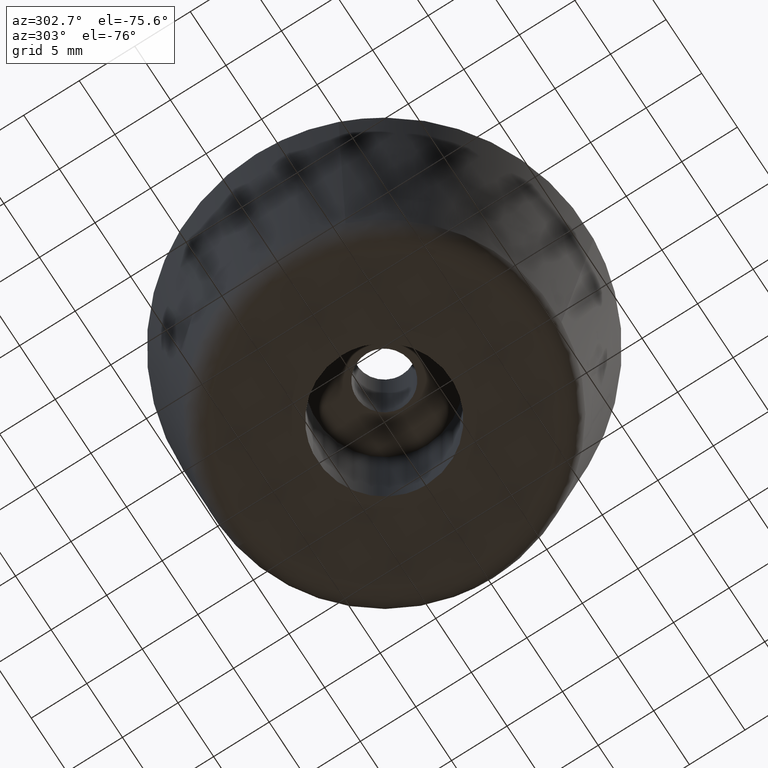
[diagram: clean part render]
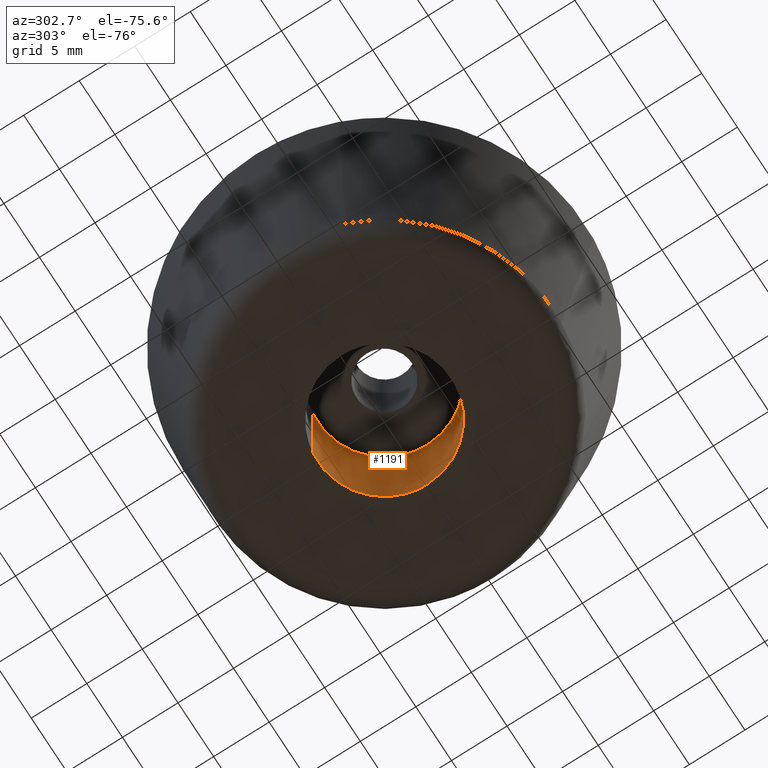
[diagram: same view with one face highlighted and labeled with its STEP entity id]
A machine part, auxiliary view. The second image highlights one B-rep face of the part: STEP entity #1191.
In plain terms, the highlighted face is a freeform B-spline surface patch.
Its self-contained STEP definition (entity closure, byte-faithful):
#1089=CARTESIAN_POINT('',(-0.708205407940551,5.958057158181998,12.299999999999796));
#1090=CARTESIAN_POINT('',(-0.537688371827866,5.978325692691634,12.299999999999796));
#1091=CARTESIAN_POINT('',(-0.366291237209142,5.988808790531200,12.299999999999800));
#1092=CARTESIAN_POINT('',(5.622517553322059,6.355100027740342,12.299999999999796));
#1093=CARTESIAN_POINT('',(5.988808790531200,0.366291237209142,12.299999999999800));
#1094=CARTESIAN_POINT('',(6.355100027740342,-5.622517553322059,12.299999999999796));
#1095=CARTESIAN_POINT('',(0.366291237209142,-5.988808790531200,12.299999999999800));
#1096=CARTESIAN_POINT('',(-0.708205407940551,5.958057158181998,-0.307499999999996));
#1097=CARTESIAN_POINT('',(-0.537688371827866,5.978325692691634,-0.307499999999996));
#1098=CARTESIAN_POINT('',(-0.366291237209142,5.988808790531200,-0.307499999999996));
#1099=CARTESIAN_POINT('',(5.622517553322059,6.355100027740342,-0.307499999999996));
#1100=CARTESIAN_POINT('',(5.988808790531200,0.366291237209142,-0.307499999999996));
#1101=CARTESIAN_POINT('',(6.355100027740342,-5.622517553322059,-0.307499999999996));
#1102=CARTESIAN_POINT('',(0.366291237209142,-5.988808790531200,-0.307499999999996));
#1110=(BOUNDED_SURFACE()B_SPLINE_SURFACE(2,1,((#1089,#1096),(#1090,#1097),(#1091,#1098),(#1092,#1099),(#1093,#1100),(#1094,#1101),(#1095,#1102)),.UNSPECIFIED.,.F.,.F.,.U.)B_SPLINE_SURFACE_WITH_KNOTS((3,2,2,3),(2,2),(0.0,0.397645019878172,10.338770516832451,20.279896013786729),(0.0,12.607499999999790),.UNSPECIFIED.)GEOMETRIC_REPRESENTATION_ITEM()RATIONAL_B_SPLINE_SURFACE(((0.977505800795127,0.977505800795127),(0.988284271247462,0.988284271247462),(1.0,1.0),(0.707106781186548,0.707106781186548),(1.0,1.0),(0.707106781186548,0.707106781186548),(1.0,1.0)))REPRESENTATION_ITEM('')SURFACE());
#1111=CARTESIAN_POINT('',(-0.708205407962288,5.958057158179415,4.827028E-016));
#1112=VERTEX_POINT('',#1111);
#1113=CARTESIAN_POINT('',(6.0,0.0,0.0));
#1114=VERTEX_POINT('',#1113);
#1115=CARTESIAN_POINT('',(-0.708205407962288,5.958057158179415,4.827028E-016));
#1116=CARTESIAN_POINT('',(-0.355344717933428,5.999999999999999,0.0));
#1117=CARTESIAN_POINT('',(0.0,6.0,0.0));
#1118=CARTESIAN_POINT('',(6.0,6.0,0.0));
#1119=CARTESIAN_POINT('',(6.0,0.0,0.0));
#1127=(BOUNDED_CURVE()B_SPLINE_CURVE(2,(#1115,#1116,#1117,#1118,#1119),.UNSPECIFIED.,.F.,.U.)B_SPLINE_CURVE_WITH_KNOTS((3,2,3),(0.229562473514411,0.250000000000000,0.500000000000000),.UNSPECIFIED.)CURVE()GEOMETRIC_REPRESENTATION_ITEM()RATIONAL_B_SPLINE_CURVE((0.956026754185469,0.976055948332203,1.0,0.707106781186548,1.0))REPRESENTATION_ITEM(''));
#1128=EDGE_CURVE('',#1112,#1114,#1127,.T.);
#1129=ORIENTED_EDGE('',*,*,#1128,.T.);
#1130=CARTESIAN_POINT('',(0.366291237240591,-5.988808790529278,4.718448E-016));
#1131=VERTEX_POINT('',#1130);
#1132=CARTESIAN_POINT('',(6.0,0.0,0.0));
#1133=CARTESIAN_POINT('',(6.0,-5.644236401374751,0.0));
#1134=CARTESIAN_POINT('',(0.366291237240591,-5.988808790529278,4.718448E-016));
#1142=(BOUNDED_CURVE()B_SPLINE_CURVE(2,(#1132,#1133,#1134),.UNSPECIFIED.,.F.,.U.)B_SPLINE_CURVE_WITH_KNOTS((3,3),(0.500000000000000,0.739332962240155),.UNSPECIFIED.)CURVE()GEOMETRIC_REPRESENTATION_ITEM()RATIONAL_B_SPLINE_CURVE((1.0,0.719603993285290,0.976072041669316))REPRESENTATION_ITEM(''));
#1143=EDGE_CURVE('',#1114,#1131,#1142,.T.);
#1144=ORIENTED_EDGE('',*,*,#1143,.T.);
#1145=CARTESIAN_POINT('',(0.366291237240592,-5.988808790529278,11.999999999999799));
#1146=VERTEX_POINT('',#1145);
#1147=CARTESIAN_POINT('',(0.366291237240592,-5.988808790529278,11.999999999999799));
#1148=CARTESIAN_POINT('',(0.366291237240591,-5.988808790529278,4.718448E-016));
#1149=QUASI_UNIFORM_CURVE('',1,(#1147,#1148),.UNSPECIFIED.,.F.,.U.);
#1150=EDGE_CURVE('',#1146,#1131,#1149,.T.);
#1151=ORIENTED_EDGE('',*,*,#1150,.F.);
#1152=CARTESIAN_POINT('',(6.0,0.0,11.999999999999799));
#1153=VERTEX_POINT('',#1152);
#1154=CARTESIAN_POINT('',(6.0,0.0,11.999999999999799));
#1155=CARTESIAN_POINT('',(6.0,-5.644236401374751,11.999999999999797));
#1156=CARTESIAN_POINT('',(0.366291237240593,-5.988808790529278,11.999999999999805));
#1164=(BOUNDED_CURVE()B_SPLINE_CURVE(2,(#1154,#1155,#1156),.UNSPECIFIED.,.F.,.U.)B_SPLINE_CURVE_WITH_KNOTS((3,3),(0.500000000000000,0.739332962240155),.UNSPECIFIED.)CURVE()GEOMETRIC_REPRESENTATION_ITEM()RATIONAL_B_SPLINE_CURVE((1.0,0.719603993285290,0.976072041669316))REPRESENTATION_ITEM(''));
#1165=EDGE_CURVE('',#1153,#1146,#1164,.T.);
#1166=ORIENTED_EDGE('',*,*,#1165,.F.);
#1167=CARTESIAN_POINT('',(-0.708194383196514,5.958058468619257,11.999999999999799));
#1168=VERTEX_POINT('',#1167);
#1169=CARTESIAN_POINT('',(-0.708194383196514,5.958058468619257,11.999999999999796));
#1170=CARTESIAN_POINT('',(-0.355339147264880,6.0,11.999999999999803));
#1171=CARTESIAN_POINT('',(0.0,6.0,11.999999999999799));
#1172=CARTESIAN_POINT('',(6.0,6.0,11.999999999999799));
#1173=CARTESIAN_POINT('',(6.0,0.0,11.999999999999799));
#1181=(BOUNDED_CURVE()B_SPLINE_CURVE(2,(#1169,#1170,#1171,#1172,#1173),.UNSPECIFIED.,.F.,.U.)B_SPLINE_CURVE_WITH_KNOTS((3,2,3),(0.229562786238015,0.250000000000000,0.500000000000000),.UNSPECIFIED.)CURVE()GEOMETRIC_REPRESENTATION_ITEM()RATIONAL_B_SPLINE_CURVE((0.956027367137448,0.976056314710695,1.0,0.707106781186548,1.0))REPRESENTATION_ITEM(''));
#1182=EDGE_CURVE('',#1168,#1153,#1181,.T.);
#1183=ORIENTED_EDGE('',*,*,#1182,.F.);
#1184=CARTESIAN_POINT('',(-0.708194383196514,5.958058468619257,11.999999999999799));
#1185=CARTESIAN_POINT('',(-0.708205407962288,5.958057158179415,4.827028E-016));
#1186=QUASI_UNIFORM_CURVE('',1,(#1184,#1185),.UNSPECIFIED.,.F.,.U.);
#1187=EDGE_CURVE('',#1168,#1112,#1186,.T.);
#1188=ORIENTED_EDGE('',*,*,#1187,.T.);
#1189=EDGE_LOOP('',(#1129,#1144,#1151,#1166,#1183,#1188));
#1190=FACE_OUTER_BOUND('',#1189,.T.);
#1191=ADVANCED_FACE('',(#1190),#1110,.F.);